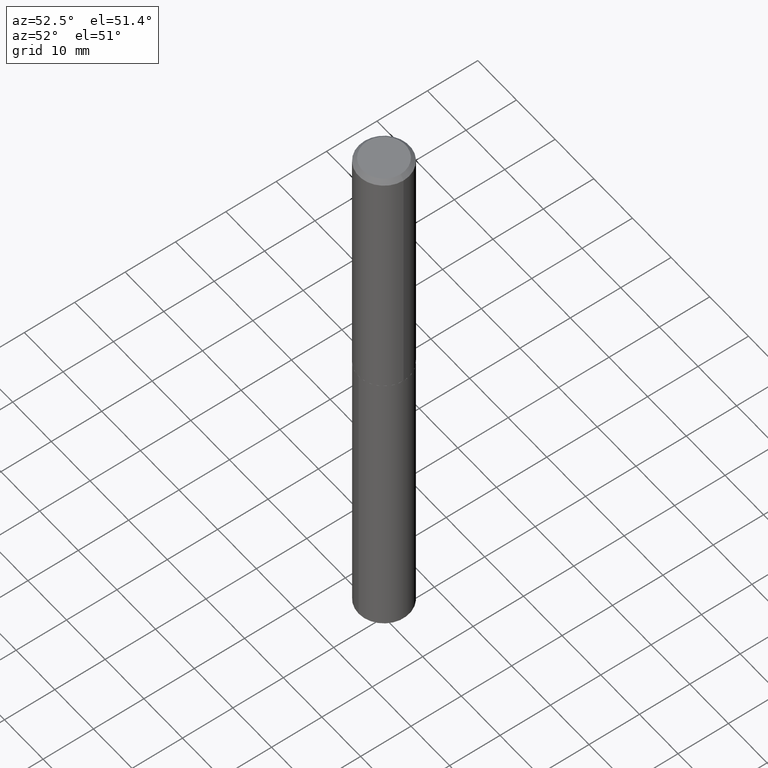
[diagram: clean part render]
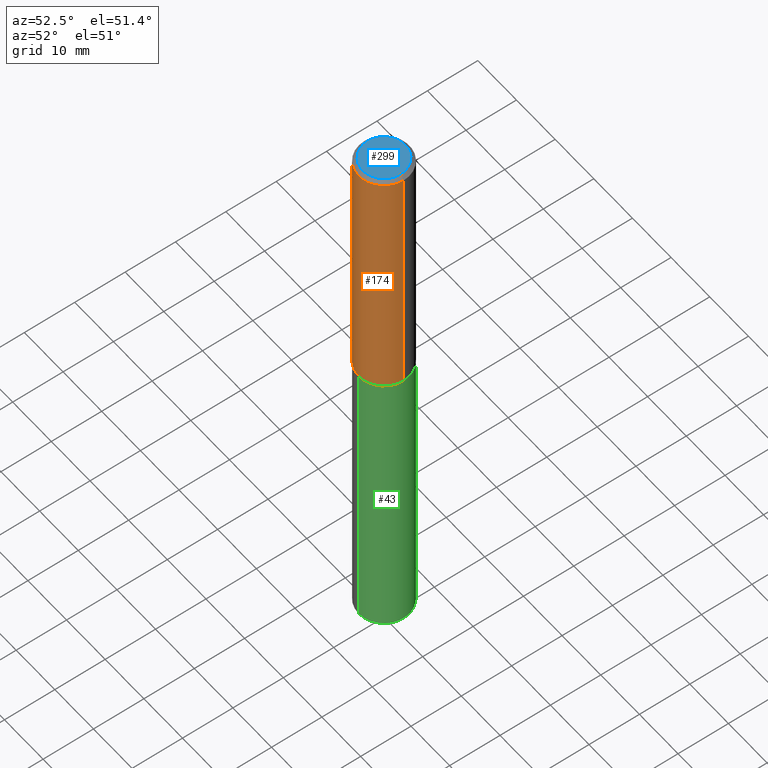
[diagram: same view with three faces highlighted in distinct colors, each labeled with its STEP entity id]
A machine part, auxiliary view with three faces highlighted in distinct colors.
Their STEP definitions:

[orange] entity #174 — the highlighted cylindrical surface (edge-blend (fillet) strip) has radius 5.0419 mm, axis along (-0, 0, 1).
#3 = CARTESIAN_POINT ( 'NONE',  ( -0.1985000000000000098, -2.173141828671334310E-15, -0.03125000000000020817 ) ) ;
#12 = EDGE_CURVE ( 'NONE', #165, #295, #163, .T. ) ;
#17 = CARTESIAN_POINT ( 'NONE',  ( 0.1985000000000001485, -1.386118091520724912E-15, 9.679210899954938883E-30 ) ) ;
#32 = CIRCLE ( 'NONE', #359, 0.1985000000000002873 ) ;
#34 = LINE ( 'NONE', #388, #225 ) ;
#44 = ORIENTED_EDGE ( 'NONE', *, *, #86, .T. ) ;
#64 = ORIENTED_EDGE ( 'NONE', *, *, #246, .F. ) ;
#86 = EDGE_CURVE ( 'NONE', #389, #295, #287, .T. ) ;
#89 = DIRECTION ( 'NONE',  ( -2.445468806185136597E-29, 3.491481338843145583E-15, 1.000000000000000000 ) ) ;
#93 = DIRECTION ( 'NONE',  ( 1.000000000000000000, -6.982962677686266711E-15, 4.876176775795935232E-29 ) ) ;
#95 = CARTESIAN_POINT ( 'NONE',  ( -0.1985000000000002873, -5.647602195987619247E-15, -2.021500000000000519 ) ) ;
#117 = ORIENTED_EDGE ( 'NONE', *, *, #186, .T. ) ;
#123 = DIRECTION ( 'NONE',  ( 1.000000000000000000, -6.982962677686266711E-15, 0.000000000000000000 ) ) ;
#124 = VERTEX_POINT ( 'NONE', #95 ) ;
#130 = DIRECTION ( 'NONE',  ( -2.445468806185136877E-29, 3.491481338843145188E-15, 1.000000000000000000 ) ) ;
#148 = DIRECTION ( 'NONE',  ( 1.000000000000000000, -6.982962677686265922E-15, 0.000000000000000000 ) ) ;
#149 = FACE_OUTER_BOUND ( 'NONE', #259, .T. ) ;
#163 = CIRCLE ( 'NONE', #372, 0.1985000000000000098 ) ;
#165 = VERTEX_POINT ( 'NONE', #3 ) ;
#174 = ADVANCED_FACE ( 'NONE', ( #149 ), #275, .T. ) ;
#185 = DIRECTION ( 'NONE',  ( -2.445468806185136597E-29, 3.491481338843145583E-15, 1.000000000000000000 ) ) ;
#186 = EDGE_CURVE ( 'NONE', #124, #389, #32, .T. ) ;
#193 = AXIS2_PLACEMENT_3D ( 'NONE', #222, #300, #93 ) ;
#203 = CARTESIAN_POINT ( 'NONE',  ( 0.1985000000000000098, -1.495226883359573027E-15, -0.03125000000000020817 ) ) ;
#205 = CARTESIAN_POINT ( 'NONE',  ( 7.642090019328602662E-31, -1.091087918388490267E-16, -0.03125000000000020817 ) ) ;
#221 = CARTESIAN_POINT ( 'NONE',  ( 4.943515191703255249E-29, -7.058029526471420552E-15, -2.021500000000000519 ) ) ;
#222 = CARTESIAN_POINT ( 'NONE',  ( 0.000000000000000000, 0.000000000000000000, 0.000000000000000000 ) ) ;
#225 = VECTOR ( 'NONE', #130, 39.37007874015748143 ) ;
#246 = EDGE_CURVE ( 'NONE', #124, #165, #34, .T. ) ;
#259 = EDGE_LOOP ( 'NONE', ( #64, #117, #44, #280 ) ) ;
#275 = CYLINDRICAL_SURFACE ( 'NONE', #193, 0.1985000000000001485 ) ;
#280 = ORIENTED_EDGE ( 'NONE', *, *, #12, .F. ) ;
#287 = LINE ( 'NONE', #17, #384 ) ;
#295 = VERTEX_POINT ( 'NONE', #203 ) ;
#300 = DIRECTION ( 'NONE',  ( -2.445468806185136597E-29, 3.491481338843145583E-15, 1.000000000000000000 ) ) ;
#343 = CARTESIAN_POINT ( 'NONE',  ( 0.1985000000000002873, -8.444147617992146450E-15, -2.021500000000000519 ) ) ;
#350 = DIRECTION ( 'NONE',  ( -2.445468806185136877E-29, 3.491481338843145188E-15, 1.000000000000000000 ) ) ;
#359 = AXIS2_PLACEMENT_3D ( 'NONE', #221, #185, #123 ) ;
#372 = AXIS2_PLACEMENT_3D ( 'NONE', #205, #89, #148 ) ;
#384 = VECTOR ( 'NONE', #350, 39.37007874015748143 ) ;
#388 = CARTESIAN_POINT ( 'NONE',  ( -0.1985000000000001485, 1.410427330483799924E-15, -9.764086154155995580E-30 ) ) ;
#389 = VERTEX_POINT ( 'NONE', #343 ) ;

[blue] entity #299 — the highlighted planar face has unit normal (0, -0, -1).
#5 = CARTESIAN_POINT ( 'NONE',  ( -0.1672500000000000098, 1.222454903762451656E-15, 6.735557395226934810E-19 ) ) ;
#33 = CARTESIAN_POINT ( 'NONE',  ( -1.647159550250147864E-47, 2.351707295243361190E-33, 6.735557395310516318E-19 ) ) ;
#40 = CIRCLE ( 'NONE', #181, 0.1672500000000000098 ) ;
#41 = DIRECTION ( 'NONE',  ( 1.000000000000000000, -6.982962677686267499E-15, 4.876141439944437457E-29 ) ) ;
#131 = DIRECTION ( 'NONE',  ( -1.000000000000000000, 6.982962677686265922E-15, -4.876176775795935793E-29 ) ) ;
#133 = AXIS2_PLACEMENT_3D ( 'NONE', #33, #216, #309 ) ;
#136 = FACE_OUTER_BOUND ( 'NONE', #252, .T. ) ;
#169 = DIRECTION ( 'NONE',  ( 2.438088387897960049E-29, -3.491481338843145188E-15, -1.000000000000000000 ) ) ;
#173 = CIRCLE ( 'NONE', #133, 0.1672500000000000098 ) ;
#178 = ORIENTED_EDGE ( 'NONE', *, *, #306, .T. ) ;
#181 = AXIS2_PLACEMENT_3D ( 'NONE', #195, #228, #41 ) ;
#182 = EDGE_CURVE ( 'NONE', #240, #358, #173, .T. ) ;
#195 = CARTESIAN_POINT ( 'NONE',  ( -1.647159550250147864E-47, 2.351707295243361190E-33, 6.735557395310516318E-19 ) ) ;
#198 = CARTESIAN_POINT ( 'NONE',  ( 0.1672500000000000098, -1.309167967261893481E-15, 6.735557395397126350E-19 ) ) ;
#216 = DIRECTION ( 'NONE',  ( -2.445468806185136597E-29, 3.491481338843145583E-15, 1.000000000000000000 ) ) ;
#228 = DIRECTION ( 'NONE',  ( -2.445468806185136597E-29, 3.491481338843145583E-15, 1.000000000000000000 ) ) ;
#229 = ORIENTED_EDGE ( 'NONE', *, *, #182, .T. ) ;
#240 = VERTEX_POINT ( 'NONE', #5 ) ;
#252 = EDGE_LOOP ( 'NONE', ( #229, #178 ) ) ;
#267 = AXIS2_PLACEMENT_3D ( 'NONE', #312, #169, #131 ) ;
#285 = PLANE ( 'NONE',  #267 ) ;
#299 = ADVANCED_FACE ( 'NONE', ( #136 ), #285, .F. ) ;
#306 = EDGE_CURVE ( 'NONE', #358, #240, #40, .T. ) ;
#309 = DIRECTION ( 'NONE',  ( 1.000000000000000000, -6.982962677686267499E-15, 4.876141439944437457E-29 ) ) ;
#312 = CARTESIAN_POINT ( 'NONE',  ( -8.235797751250739320E-48, 1.175853647621680595E-33, 3.367778697655258159E-19 ) ) ;
#358 = VERTEX_POINT ( 'NONE', #198 ) ;

[green] entity #43 — the highlighted cylindrical surface (edge-blend (fillet) strip) has radius 5.0419 mm, axis along (-0, 0, 1).
#8 = ORIENTED_EDGE ( 'NONE', *, *, #99, .T. ) ;
#16 = VERTEX_POINT ( 'NONE', #118 ) ;
#28 = VERTEX_POINT ( 'NONE', #331 ) ;
#30 = DIRECTION ( 'NONE',  ( -2.445426262625076269E-29, 3.491542263642581322E-15, 1.000000000000000000 ) ) ;
#36 = LINE ( 'NONE', #127, #37 ) ;
#37 = VECTOR ( 'NONE', #30, 39.37007874015748143 ) ;
#43 = ADVANCED_FACE ( 'NONE', ( #145 ), #88, .T. ) ;
#67 = DIRECTION ( 'NONE',  ( -6.982962677686265922E-15, -1.000000000000000000, 2.752491681273816674E-15 ) ) ;
#80 = DIRECTION ( 'NONE',  ( -2.445426262625076269E-29, 3.491542263642581322E-15, 1.000000000000000000 ) ) ;
#84 = VECTOR ( 'NONE', #80, 39.37007874015748143 ) ;
#88 = CYLINDRICAL_SURFACE ( 'NONE', #139, 0.1985000000000000098 ) ;
#94 = DIRECTION ( 'NONE',  ( -2.445426262625076269E-29, 3.491542263642580928E-15, 1.000000000000000000 ) ) ;
#96 = VERTEX_POINT ( 'NONE', #323 ) ;
#97 = CARTESIAN_POINT ( 'NONE',  ( 1.410427330483906421E-15, 0.1984999999999929321, -2.022000000000001130 ) ) ;
#99 = EDGE_CURVE ( 'NONE', #96, #16, #289, .T. ) ;
#113 = EDGE_CURVE ( 'NONE', #28, #170, #213, .T. ) ;
#118 = CARTESIAN_POINT ( 'NONE',  ( 1.410427330483905632E-15, 0.1984999999999846887, -4.380729167123031509 ) ) ;
#119 = EDGE_CURVE ( 'NONE', #96, #28, #36, .T. ) ;
#121 = CARTESIAN_POINT ( 'NONE',  ( 4.944737926106347490E-29, -7.059775267140842055E-15, -2.022000000000000242 ) ) ;
#127 = CARTESIAN_POINT ( 'NONE',  ( -1.386118091520674425E-15, -0.1985000000000070874, -2.021999999999999797 ) ) ;
#139 = AXIS2_PLACEMENT_3D ( 'NONE', #147, #166, #346 ) ;
#145 = FACE_OUTER_BOUND ( 'NONE', #202, .T. ) ;
#147 = CARTESIAN_POINT ( 'NONE',  ( 4.944737926106347490E-29, -7.059775267140842055E-15, -2.022000000000000242 ) ) ;
#166 = DIRECTION ( 'NONE',  ( -2.445426262625076269E-29, 3.491542263642580928E-15, 1.000000000000000000 ) ) ;
#168 = ORIENTED_EDGE ( 'NONE', *, *, #119, .F. ) ;
#170 = VERTEX_POINT ( 'NONE', #97 ) ;
#200 = AXIS2_PLACEMENT_3D ( 'NONE', #272, #386, #67 ) ;
#202 = EDGE_LOOP ( 'NONE', ( #8, #375, #230, #168 ) ) ;
#213 = CIRCLE ( 'NONE', #266, 0.1985000000000000098 ) ;
#230 = ORIENTED_EDGE ( 'NONE', *, *, #113, .F. ) ;
#266 = AXIS2_PLACEMENT_3D ( 'NONE', #121, #94, #368 ) ;
#272 = CARTESIAN_POINT ( 'NONE',  ( 1.071283617780877760E-28, -1.529537784263736795E-14, -4.380729167123030621 ) ) ;
#289 = CIRCLE ( 'NONE', #200, 0.1985000000000000098 ) ;
#313 = EDGE_CURVE ( 'NONE', #16, #170, #320, .T. ) ;
#320 = LINE ( 'NONE', #345, #84 ) ;
#323 = CARTESIAN_POINT ( 'NONE',  ( -1.386118091520616444E-15, -0.1985000000000152753, -4.380729167123029733 ) ) ;
#331 = CARTESIAN_POINT ( 'NONE',  ( -1.386118091520674425E-15, -0.1985000000000070874, -2.021999999999999797 ) ) ;
#345 = CARTESIAN_POINT ( 'NONE',  ( 1.410427330483848242E-15, 0.1984999999999929321, -2.022000000000001130 ) ) ;
#346 = DIRECTION ( 'NONE',  ( -6.982962677686265922E-15, -1.000000000000000000, 4.128737521910725011E-15 ) ) ;
#368 = DIRECTION ( 'NONE',  ( -6.982962677686265922E-15, -1.000000000000000000, 4.128737521910725011E-15 ) ) ;
#375 = ORIENTED_EDGE ( 'NONE', *, *, #313, .T. ) ;
#386 = DIRECTION ( 'NONE',  ( -2.445426262625076269E-29, 3.491542263642580928E-15, 1.000000000000000000 ) ) ;